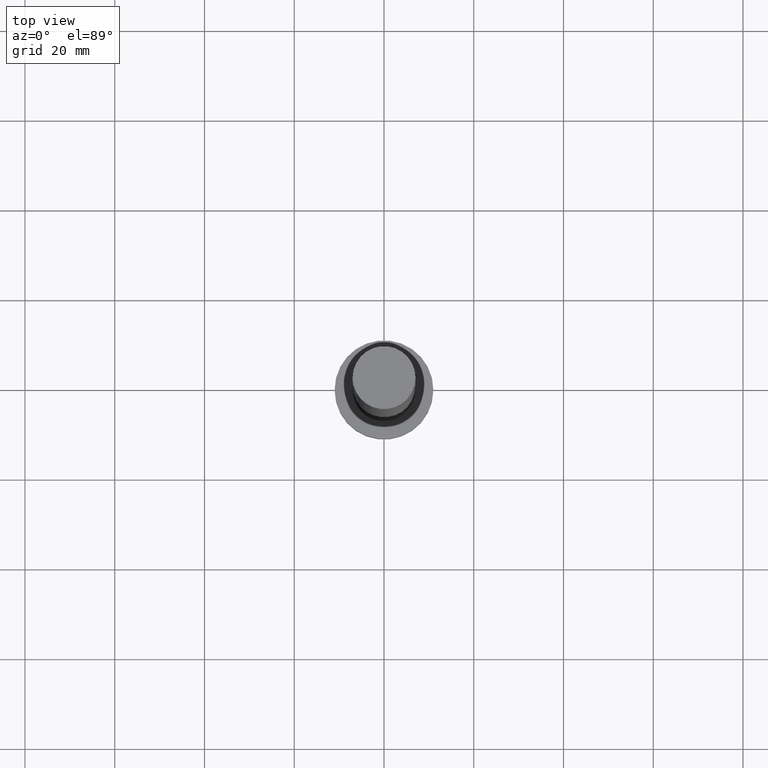
[diagram: clean part render]
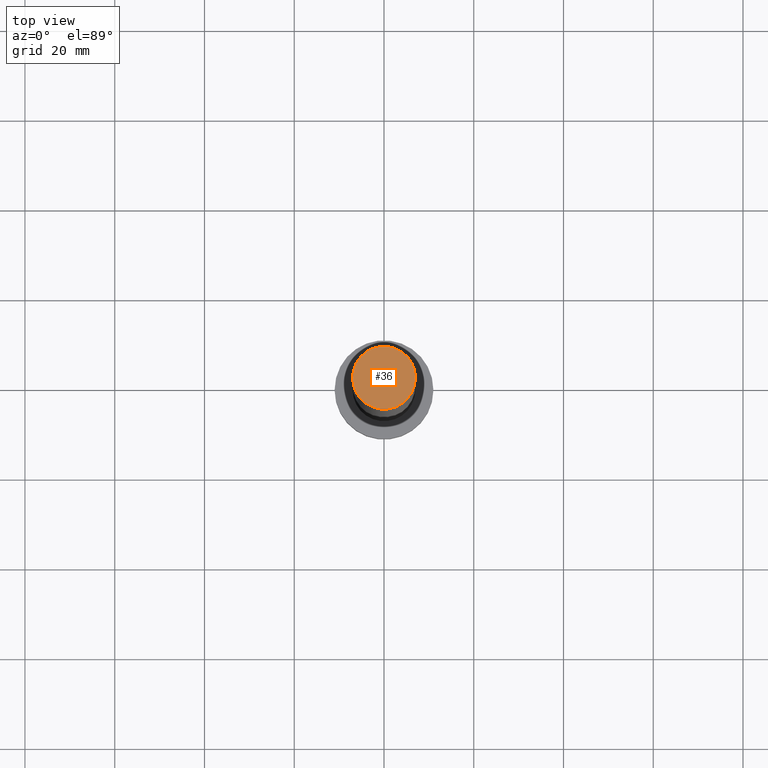
[diagram: same view with one face highlighted and labeled with its STEP entity id]
A machine part, top view. The second image highlights one B-rep face of the part: STEP entity #36.
In plain terms, the highlighted planar face has unit normal (0, 0, 1).
Its self-contained STEP definition (entity closure, byte-faithful):
#27 = DIRECTION ( 'NONE',  ( 1.000000000000000000, 0.000000000000000000, 0.000000000000000000 ) ) ;
#31 = AXIS2_PLACEMENT_3D ( 'NONE', #202, #222, #159 ) ;
#36 = ADVANCED_FACE ( 'NONE', ( #67 ), #181, .T. ) ;
#38 = ORIENTED_EDGE ( 'NONE', *, *, #182, .T. ) ;
#40 = ORIENTED_EDGE ( 'NONE', *, *, #63, .T. ) ;
#49 = CIRCLE ( 'NONE', #220, 7.000000000000000888 ) ;
#63 = EDGE_CURVE ( 'NONE', #177, #250, #49, .T. ) ;
#66 = CARTESIAN_POINT ( 'NONE',  ( 0.000000000000000000, 0.000000000000000000, 160.0000000000000000 ) ) ;
#67 = FACE_OUTER_BOUND ( 'NONE', #217, .T. ) ;
#68 = DIRECTION ( 'NONE',  ( 0.000000000000000000, 0.000000000000000000, 1.000000000000000000 ) ) ;
#85 = DIRECTION ( 'NONE',  ( 0.000000000000000000, 0.000000000000000000, 1.000000000000000000 ) ) ;
#90 = CARTESIAN_POINT ( 'NONE',  ( -7.000000000000000888, 0.000000000000000000, 160.0000000000000000 ) ) ;
#118 = AXIS2_PLACEMENT_3D ( 'NONE', #66, #85, #161 ) ;
#125 = CARTESIAN_POINT ( 'NONE',  ( 0.000000000000000000, 0.000000000000000000, 160.0000000000000000 ) ) ;
#155 = CARTESIAN_POINT ( 'NONE',  ( 7.000000000000000888, 8.572527594031474176E-16, 160.0000000000000000 ) ) ;
#159 = DIRECTION ( 'NONE',  ( 1.000000000000000000, 0.000000000000000000, -0.000000000000000000 ) ) ;
#161 = DIRECTION ( 'NONE',  ( 1.000000000000000000, 0.000000000000000000, 0.000000000000000000 ) ) ;
#174 = CIRCLE ( 'NONE', #118, 7.000000000000000888 ) ;
#177 = VERTEX_POINT ( 'NONE', #90 ) ;
#181 = PLANE ( 'NONE',  #31 ) ;
#182 = EDGE_CURVE ( 'NONE', #250, #177, #174, .T. ) ;
#202 = CARTESIAN_POINT ( 'NONE',  ( 0.000000000000000000, 0.000000000000000000, 160.0000000000000000 ) ) ;
#217 = EDGE_LOOP ( 'NONE', ( #40, #38 ) ) ;
#220 = AXIS2_PLACEMENT_3D ( 'NONE', #125, #68, #27 ) ;
#222 = DIRECTION ( 'NONE',  ( 0.000000000000000000, 0.000000000000000000, 1.000000000000000000 ) ) ;
#250 = VERTEX_POINT ( 'NONE', #155 ) ;